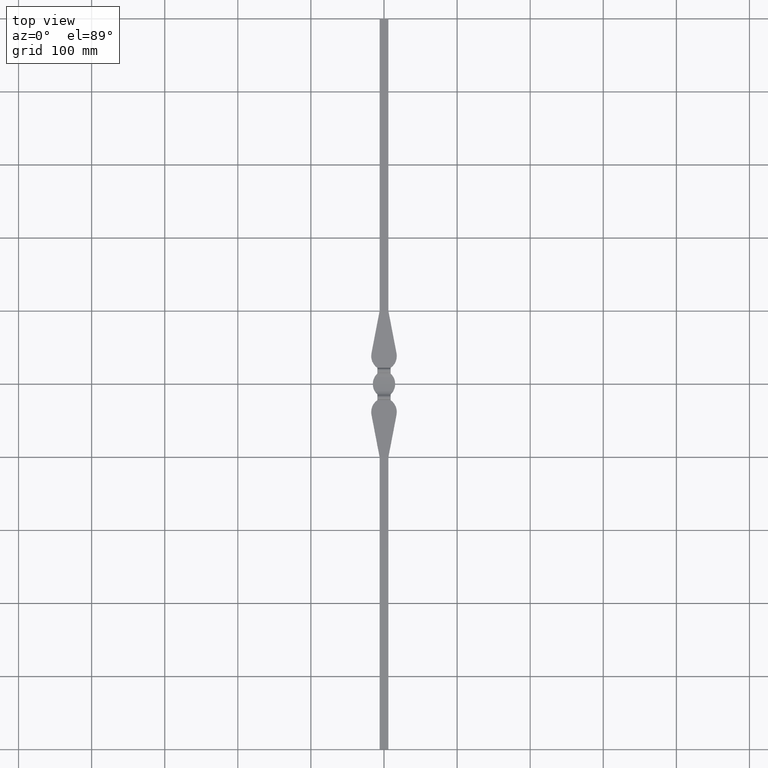
[diagram: clean part render]
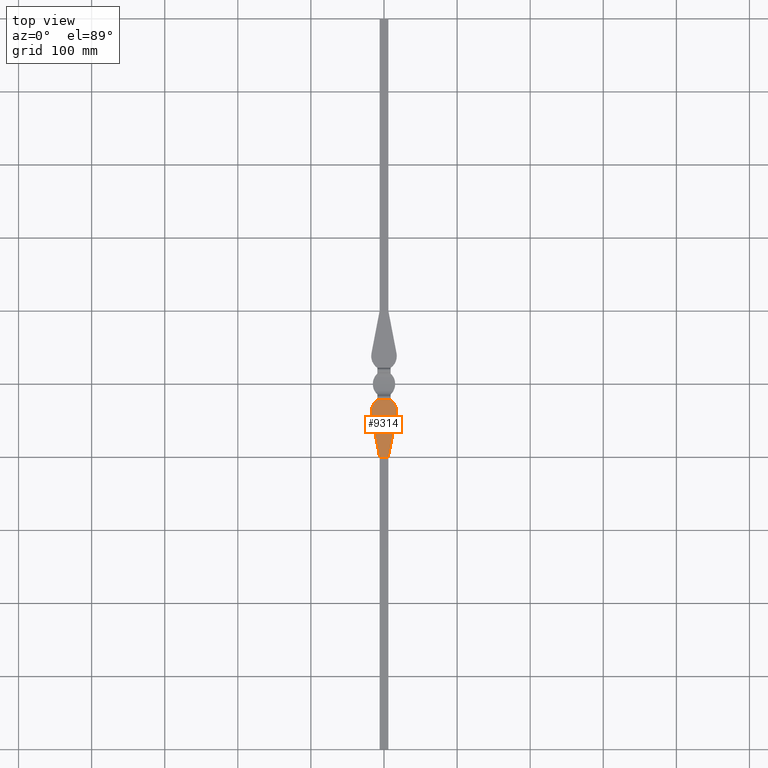
[diagram: same view with one face highlighted and labeled with its STEP entity id]
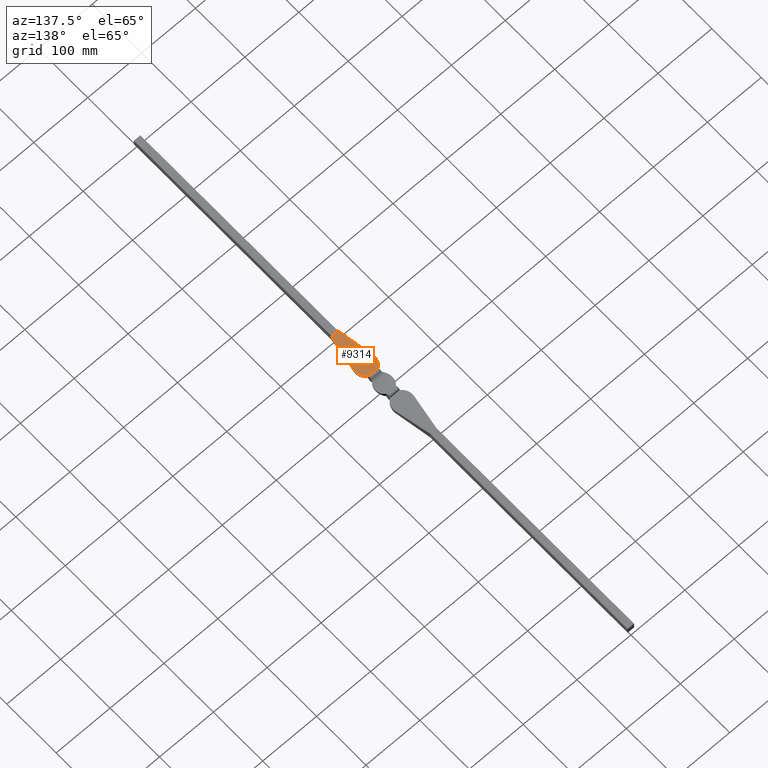
[diagram: same view with one face highlighted and labeled with its STEP entity id]
A machine part, top view. The second image highlights one B-rep face of the part: STEP entity #9314.
A second angle (auxiliary view) of the same face is appended — the face is thin or edge-on in the first view.
In plain terms, the highlighted planar face has unit normal (0, -0.048, -0.9988).
Its self-contained STEP definition (entity closure, byte-faithful):
#71 = CARTESIAN_POINT ( 'NONE',  ( 6.000000000000000000, -100.0000000000000284, 6.000000000000000000 ) ) ;
#138 = VECTOR ( 'NONE', #1589, 999.9999999999998863 ) ;
#142 = LINE ( 'NONE', #1215, #1142 ) ;
#225 =( BOUNDED_CURVE ( )  B_SPLINE_CURVE ( 3, ( #4179, #7988, #1199, #11563 ),
 .UNSPECIFIED., .F., .F. ) 
 B_SPLINE_CURVE_WITH_KNOTS ( ( 4, 4 ),
 ( 0.6075557776634181728, 1.760624203291724310 ),
 .UNSPECIFIED. ) 
 CURVE ( )  GEOMETRIC_REPRESENTATION_ITEM ( )  RATIONAL_B_SPLINE_CURVE ( ( 1.000000000000000000, 0.8922379711962259430, 0.8922379711962259430, 1.000000000000000000 ) ) 
 REPRESENTATION_ITEM ( '' )  );
#276 = ORIENTED_EDGE ( 'NONE', *, *, #10858, .T. ) ;
#1037 = VERTEX_POINT ( 'NONE', #9846 ) ;
#1142 = VECTOR ( 'NONE', #4765, 1000.000000000000000 ) ;
#1199 = CARTESIAN_POINT ( 'NONE',  ( 18.66647083708079791, -34.07733110502264395, 2.830640918510703763 ) ) ;
#1215 = CARTESIAN_POINT ( 'NONE',  ( 0.000000000000000000, -100.0000000000000000, 6.000000000000000000 ) ) ;
#1270 = LINE ( 'NONE', #8029, #7897 ) ;
#1369 = VERTEX_POINT ( 'NONE', #11265 ) ;
#1510 = CARTESIAN_POINT ( 'NONE',  ( -6.000000000000000000, -99.99999999999997158, 5.999999999999998224 ) ) ;
#1528 = EDGE_CURVE ( 'NONE', #1585, #10508, #8774, .T. ) ;
#1585 = VERTEX_POINT ( 'NONE', #5536 ) ;
#1589 = DIRECTION ( 'NONE',  ( 0.1884799131876506717, -0.9809440269699578607, 0.04716077052740182129 ) ) ;
#1943 = LINE ( 'NONE', #1510, #138 ) ;
#1968 = ORIENTED_EDGE ( 'NONE', *, *, #1528, .F. ) ;
#2250 = CARTESIAN_POINT ( 'NONE',  ( -17.50000000000000355, -100.0000000000000000, 6.000000000000000000 ) ) ;
#2760 = EDGE_CURVE ( 'NONE', #11598, #1037, #142, .T. ) ;
#3488 = DIRECTION ( 'NONE',  ( 1.000000000000000000, 0.000000000000000000, 0.000000000000000000 ) ) ;
#3939 = PLANE ( 'NONE',  #6531 ) ;
#4179 = CARTESIAN_POINT ( 'NONE',  ( 9.000000000000000000, -22.00000000000000000, 2.250000000000000000 ) ) ;
#4386 = DIRECTION ( 'NONE',  ( -0.1884799131876506717, -0.9809440269699578607, 0.04716077052740182129 ) ) ;
#4452 = EDGE_LOOP ( 'NONE', ( #276, #8075, #5630, #11363, #7139, #1968 ) ) ;
#4495 = CARTESIAN_POINT ( 'NONE',  ( -17.14419851115371429, -42.00000000000000000, 3.211538461538461231 ) ) ;
#4589 = VERTEX_POINT ( 'NONE', #6777 ) ;
#4765 = DIRECTION ( 'NONE',  ( -1.000000000000000000, 4.625929269271485322E-15, 0.000000000000000000 ) ) ;
#5346 = CARTESIAN_POINT ( 'NONE',  ( -18.66647083708079791, -34.07733110502264395, 2.830640918510703763 ) ) ;
#5457 = CARTESIAN_POINT ( 'NONE',  ( -15.62386009343402193, -26.60548291890626871, 2.471417448024340047 ) ) ;
#5536 = CARTESIAN_POINT ( 'NONE',  ( -9.000000000000000000, -22.00000000000000000, 2.250000000000000444 ) ) ;
#5626 = CARTESIAN_POINT ( 'NONE',  ( 9.000000000000000000, -22.00000000000000000, 2.250000000000000000 ) ) ;
#5630 = ORIENTED_EDGE ( 'NONE', *, *, #2760, .F. ) ;
#5727 = FACE_OUTER_BOUND ( 'NONE', #4452, .T. ) ;
#6128 = CARTESIAN_POINT ( 'NONE',  ( -17.50000000000000355, -22.00000000000000000, 2.250000000000000000 ) ) ;
#6531 = AXIS2_PLACEMENT_3D ( 'NONE', #2250, #6617, #7626 ) ;
#6533 = EDGE_CURVE ( 'NONE', #4589, #11598, #1270, .T. ) ;
#6617 = DIRECTION ( 'NONE',  ( 0.000000000000000000, -0.04802145693893659917, -0.9988463043298813071 ) ) ;
#6777 = CARTESIAN_POINT ( 'NONE',  ( 17.14419851115371429, -42.00000000000000000, 3.211538461538461231 ) ) ;
#7139 = ORIENTED_EDGE ( 'NONE', *, *, #10928, .F. ) ;
#7189 =( BOUNDED_CURVE ( )  B_SPLINE_CURVE ( 3, ( #10860, #5457, #5346, #4495 ),
 .UNSPECIFIED., .F., .F. ) 
 B_SPLINE_CURVE_WITH_KNOTS ( ( 4, 4 ),
 ( 0.6075557776634181728, 1.760624203291724310 ),
 .UNSPECIFIED. ) 
 CURVE ( )  GEOMETRIC_REPRESENTATION_ITEM ( )  RATIONAL_B_SPLINE_CURVE ( ( 1.000000000000000000, 0.8922379711962259430, 0.8922379711962259430, 1.000000000000000000 ) ) 
 REPRESENTATION_ITEM ( '' )  );
#7267 = EDGE_CURVE ( 'NONE', #1369, #1037, #1943, .T. ) ;
#7304 = VECTOR ( 'NONE', #3488, 1000.000000000000000 ) ;
#7626 = DIRECTION ( 'NONE',  ( 0.000000000000000000, -0.9988463043298813071, 0.04802145693893659917 ) ) ;
#7897 = VECTOR ( 'NONE', #4386, 999.9999999999998863 ) ;
#7988 = CARTESIAN_POINT ( 'NONE',  ( 15.62386009343402193, -26.60548291890626871, 2.471417448024340047 ) ) ;
#8029 = CARTESIAN_POINT ( 'NONE',  ( 6.000000000000000000, -99.99999999999997158, 5.999999999999998224 ) ) ;
#8075 = ORIENTED_EDGE ( 'NONE', *, *, #7267, .T. ) ;
#8774 = LINE ( 'NONE', #6128, #7304 ) ;
#9314 = ADVANCED_FACE ( 'NONE', ( #5727 ), #3939, .F. ) ;
#9846 = CARTESIAN_POINT ( 'NONE',  ( -6.000000000000000000, -99.99999999999997158, 6.000000000000000000 ) ) ;
#10508 = VERTEX_POINT ( 'NONE', #5626 ) ;
#10858 = EDGE_CURVE ( 'NONE', #1585, #1369, #7189, .T. ) ;
#10860 = CARTESIAN_POINT ( 'NONE',  ( -9.000000000000000000, -22.00000000000000000, 2.250000000000000444 ) ) ;
#10928 = EDGE_CURVE ( 'NONE', #10508, #4589, #225, .T. ) ;
#11265 = CARTESIAN_POINT ( 'NONE',  ( -17.14419851115371429, -42.00000000000000000, 3.211538461538461231 ) ) ;
#11363 = ORIENTED_EDGE ( 'NONE', *, *, #6533, .F. ) ;
#11563 = CARTESIAN_POINT ( 'NONE',  ( 17.14419851115371429, -42.00000000000000000, 3.211538461538461231 ) ) ;
#11598 = VERTEX_POINT ( 'NONE', #71 ) ;